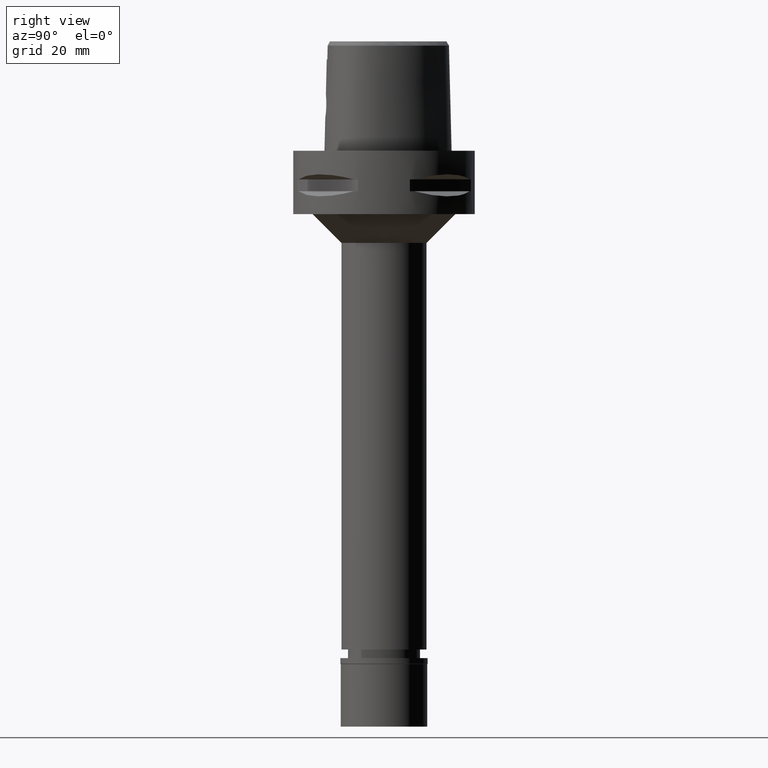
[diagram: clean part render]
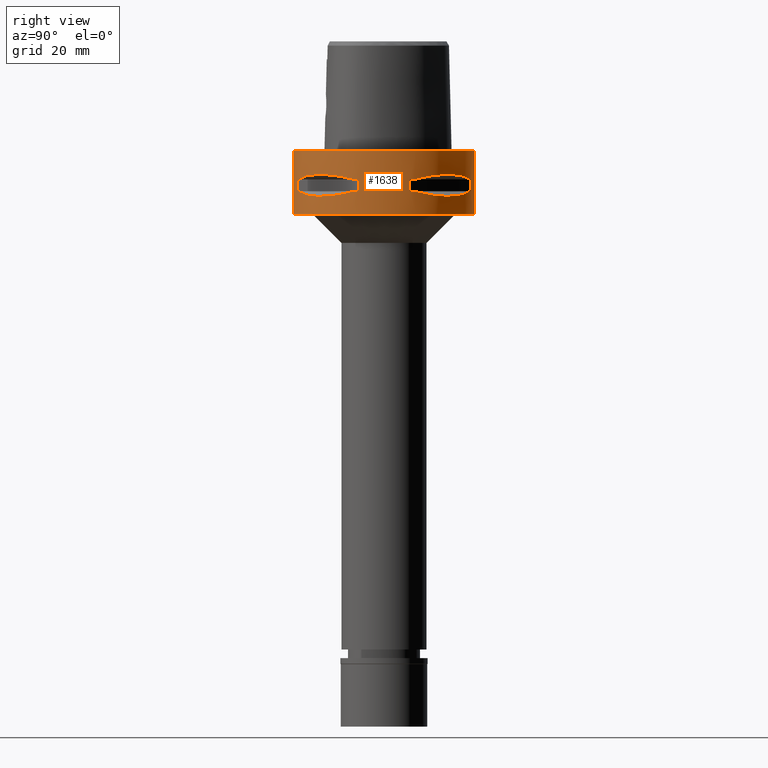
[diagram: same view with one face highlighted and labeled with its STEP entity id]
A machine part, right view. The second image highlights one B-rep face of the part: STEP entity #1638.
In plain terms, the highlighted cylindrical surface (partial cylindrical patch) has radius 31.5 mm, axis along (0, 0, -1).
Its self-contained STEP definition (entity closure, byte-faithful):
#9 = VERTEX_POINT ( 'NONE', #4226 ) ;
#26 = ORIENTED_EDGE ( 'NONE', *, *, #2072, .T. ) ;
#74 = CIRCLE ( 'NONE', #711, 31.50000000000000000 ) ;
#113 = LINE ( 'NONE', #529, #1449 ) ;
#123 = ORIENTED_EDGE ( 'NONE', *, *, #153, .T. ) ;
#128 = FACE_BOUND ( 'NONE', #1842, .T. ) ;
#144 = CARTESIAN_POINT ( 'NONE',  ( 17.05047092244466000, 26.48642424310579813, -15.42670883407955884 ) ) ;
#153 = EDGE_CURVE ( 'NONE', #1996, #880, #2479, .T. ) ;
#154 = EDGE_CURVE ( 'NONE', #861, #195, #810, .T. ) ;
#160 = CIRCLE ( 'NONE', #2931, 31.50000000000001776 ) ;
#169 = CARTESIAN_POINT ( 'NONE',  ( 28.62019653469295832, 13.25636937902403645, -14.74888225541133124 ) ) ;
#181 = ORIENTED_EDGE ( 'NONE', *, *, #3901, .T. ) ;
#186 = CARTESIAN_POINT ( 'NONE',  ( 10.44775724750000023, 29.71690375017999841, -9.950000000002001244 ) ) ;
#189 = CARTESIAN_POINT ( 'NONE',  ( 0.0000000000000000000, 1.340988245065999776E-14, -14.05000000000000071 ) ) ;
#195 = VERTEX_POINT ( 'NONE', #4689 ) ;
#204 = CARTESIAN_POINT ( 'NONE',  ( 26.54368690921830520, -16.96123479565102699, -15.41365572341627121 ) ) ;
#214 = CARTESIAN_POINT ( 'NONE',  ( 29.71690375017999841, 10.44775724750000023, -14.05000000000000071 ) ) ;
#225 = CARTESIAN_POINT ( 'NONE',  ( 24.23018836743425197, -20.18579225689640921, -15.78559396979826346 ) ) ;
#287 = ORIENTED_EDGE ( 'NONE', *, *, #4191, .F. ) ;
#305 = CARTESIAN_POINT ( 'NONE',  ( 25.43927894890251551, -18.59229662067769340, -15.62866126335070049 ) ) ;
#325 = CARTESIAN_POINT ( 'NONE',  ( 8.981198972019999616, 30.19251670572000279, -14.05000000000000071 ) ) ;
#361 = CARTESIAN_POINT ( 'NONE',  ( 0.0000000000000000000, 1.340988245065999776E-14, -9.950000000000001066 ) ) ;
#406 = CARTESIAN_POINT ( 'NONE',  ( 10.44775724750000023, 29.71690375017999841, -9.950000000002001244 ) ) ;
#410 = EDGE_CURVE ( 'NONE', #2872, #4004, #2043, .T. ) ;
#463 = DIRECTION ( 'NONE',  ( 0.0000000000000000000, 0.0000000000000000000, -1.000000000000000000 ) ) ;
#499 = AXIS2_PLACEMENT_3D ( 'NONE', #361, #3057, #3771 ) ;
#516 = DIRECTION ( 'NONE',  ( 0.0000000000000000000, 0.0000000000000000000, 1.000000000000000000 ) ) ;
#529 = CARTESIAN_POINT ( 'NONE',  ( 0.0000000000000000000, 31.50000000000000000, 0.0000000000000000000 ) ) ;
#588 = CARTESIAN_POINT ( 'NONE',  ( 26.64486562695979188, 16.80193241490626122, -15.38992683735969003 ) ) ;
#618 = CARTESIAN_POINT ( 'NONE',  ( 26.48642424310494903, -17.05047092244668505, -15.42670883408004023 ) ) ;
#632 = ORIENTED_EDGE ( 'NONE', *, *, #2772, .T. ) ;
#687 = VERTEX_POINT ( 'NONE', #3541 ) ;
#711 = AXIS2_PLACEMENT_3D ( 'NONE', #929, #3554, #3234 ) ;
#743 = CARTESIAN_POINT ( 'NONE',  ( 23.90617837153845571, -20.64154884321403571, -8.160613588491569814 ) ) ;
#747 = VERTEX_POINT ( 'NONE', #1293 ) ;
#810 = CIRCLE ( 'NONE', #499, 31.50000000000000711 ) ;
#850 = ORIENTED_EDGE ( 'NONE', *, *, #1821, .F. ) ;
#858 = CARTESIAN_POINT ( 'NONE',  ( 30.19251670572000279, -8.981198972016999349, -9.950000000000001066 ) ) ;
#859 = CARTESIAN_POINT ( 'NONE',  ( 0.0000000000000000000, 1.340988245065999776E-14, -9.950000000000001066 ) ) ;
#861 = VERTEX_POINT ( 'NONE', #186 ) ;
#880 = VERTEX_POINT ( 'NONE', #1819 ) ;
#886 = CARTESIAN_POINT ( 'NONE',  ( 21.46242677078534911, 23.08532645887771650, -15.83938991065519630 ) ) ;
#929 = CARTESIAN_POINT ( 'NONE',  ( 0.0000000000000000000, 1.340988245065999776E-14, -22.00000000000000000 ) ) ;
#948 = DIRECTION ( 'NONE',  ( 0.0000000000000000000, -1.000000000000000000, 0.0000000000000000000 ) ) ;
#988 = EDGE_CURVE ( 'NONE', #687, #9, #1186, .T. ) ;
#1001 = CARTESIAN_POINT ( 'NONE',  ( 27.86285265926396093, -14.89252659057812345, -15.10765629752127559 ) ) ;
#1028 = CARTESIAN_POINT ( 'NONE',  ( 10.44775724750000023, -29.71690375017999841, -14.05000000000000071 ) ) ;
#1036 = ORIENTED_EDGE ( 'NONE', *, *, #2799, .F. ) ;
#1068 = ORIENTED_EDGE ( 'NONE', *, *, #1967, .T. ) ;
#1093 = VERTEX_POINT ( 'NONE', #4224 ) ;
#1100 = LINE ( 'NONE', #2979, #1674 ) ;
#1116 = ORIENTED_EDGE ( 'NONE', *, *, #2220, .F. ) ;
#1120 = VERTEX_POINT ( 'NONE', #3437 ) ;
#1127 = VERTEX_POINT ( 'NONE', #2342 ) ;
#1128 = CIRCLE ( 'NONE', #3024, 31.50000000000001776 ) ;
#1129 = CIRCLE ( 'NONE', #4278, 31.50000000000000711 ) ;
#1132 = CARTESIAN_POINT ( 'NONE',  ( 30.19251670572000279, -8.981198972019999616, -14.05000000000000071 ) ) ;
#1137 = VERTEX_POINT ( 'NONE', #2723 ) ;
#1139 = CIRCLE ( 'NONE', #4451, 31.50000000000000711 ) ;
#1148 = ORIENTED_EDGE ( 'NONE', *, *, #988, .T. ) ;
#1149 = CARTESIAN_POINT ( 'NONE',  ( 12.70092055739809744, -28.92474506841551118, -9.353547358206165896 ) ) ;
#1186 = CIRCLE ( 'NONE', #3950, 31.50000000000000711 ) ;
#1195 = VECTOR ( 'NONE', #516, 1000.000000000000000 ) ;
#1200 = EDGE_CURVE ( 'NONE', #1093, #1137, #74, .T. ) ;
#1220 = CARTESIAN_POINT ( 'NONE',  ( 30.19251670572000279, 8.981198972019999616, -9.950000000000001066 ) ) ;
#1250 = DIRECTION ( 'NONE',  ( 0.0000000000000000000, 0.0000000000000000000, -1.000000000000000000 ) ) ;
#1275 = CARTESIAN_POINT ( 'NONE',  ( 0.0000000000000000000, 1.340988245065999776E-14, 9.500000000000000000 ) ) ;
#1286 = ORIENTED_EDGE ( 'NONE', *, *, #3436, .T. ) ;
#1293 = CARTESIAN_POINT ( 'NONE',  ( 29.71690375017999841, -10.44775724750000023, -14.05000000000000071 ) ) ;
#1312 = CARTESIAN_POINT ( 'NONE',  ( 17.14106442934976826, 26.42800887047588532, -15.43984550238772790 ) ) ;
#1331 = ORIENTED_EDGE ( 'NONE', *, *, #4649, .F. ) ;
#1356 = CARTESIAN_POINT ( 'NONE',  ( 26.58330558444617608, 16.89910283486720743, -15.40446471307533827 ) ) ;
#1363 = CARTESIAN_POINT ( 'NONE',  ( 29.71690375017999841, -10.44775724750000023, -9.950000000002001244 ) ) ;
#1367 = CARTESIAN_POINT ( 'NONE',  ( 23.08532645887072476, -21.46242677080184436, -15.83938991065908120 ) ) ;
#1394 = CARTESIAN_POINT ( 'NONE',  ( 29.71690375017999841, 10.44775724750000023, -9.950000000002001244 ) ) ;
#1442 = CARTESIAN_POINT ( 'NONE',  ( 29.71690375017999841, -10.44775724750000023, -9.950000000002001244 ) ) ;
#1447 = CARTESIAN_POINT ( 'NONE',  ( 28.91382665368659488, -12.73197616788688968, -14.65467361754156350 ) ) ;
#1449 = VECTOR ( 'NONE', #3160, 1000.000000000000000 ) ;
#1452 = CARTESIAN_POINT ( 'NONE',  ( 12.70097436174572358, 28.92472615208537334, -9.353533115232664841 ) ) ;
#1457 = DIRECTION ( 'NONE',  ( 0.3316748332540863653, -0.9433937698468619626, 0.0000000000000000000 ) ) ;
#1468 = CARTESIAN_POINT ( 'NONE',  ( 0.0000000000000000000, 31.50000000000000000, 0.0000000000000000000 ) ) ;
#1606 = CARTESIAN_POINT ( 'NONE',  ( 8.981198972016999349, 30.19251670572000279, -14.05000000000000071 ) ) ;
#1629 = EDGE_CURVE ( 'NONE', #2747, #3164, #3157, .T. ) ;
#1632 = FACE_BOUND ( 'NONE', #4850, .T. ) ;
#1638 = ADVANCED_FACE ( 'NONE', ( #4641, #128, #1632 ), #4695, .T. ) ;
#1645 = DIRECTION ( 'NONE',  ( 0.2851174276831918153, -0.9584925938322735872, 0.0000000000000000000 ) ) ;
#1674 = VECTOR ( 'NONE', #3715, 1000.000000000000000 ) ;
#1675 = CARTESIAN_POINT ( 'NONE',  ( 26.84474411199017752, 16.48208282228755550, -15.34094883778170093 ) ) ;
#1680 = B_SPLINE_CURVE_WITH_KNOTS ( 'NONE', 3,
 ( #1394, #1810, #4048, #3678, #4819, #2935, #3336, #4845, #1452, #406 ),
 .UNSPECIFIED., .F., .F.,
 ( 4, 2, 2, 2, 4 ),
 ( 0.0000000000000000000, 0.2500000000000000000, 0.5000000000000000000, 0.7500000000000000000, 1.000000000000000000 ),
 .UNSPECIFIED. ) ;
#1698 = CARTESIAN_POINT ( 'NONE',  ( 27.64634172018763536, 15.11986997308868830, -15.11207862403486146 ) ) ;
#1729 = CARTESIAN_POINT ( 'NONE',  ( 26.29071741523342709, -17.35163608580722894, -15.46976201925860828 ) ) ;
#1736 = VECTOR ( 'NONE', #3528, 1000.000000000000000 ) ;
#1750 = ORIENTED_EDGE ( 'NONE', *, *, #1629, .F. ) ;
#1806 = CARTESIAN_POINT ( 'NONE',  ( 26.01217882833934780, -17.76952662673609851, -15.52665221626610403 ) ) ;
#1810 = CARTESIAN_POINT ( 'NONE',  ( 28.92474506841557513, 12.70092055739797487, -9.353547358206164120 ) ) ;
#1819 = CARTESIAN_POINT ( 'NONE',  ( 0.0000000000000000000, -31.50000000000000000, 0.0000000000000000000 ) ) ;
#1821 = EDGE_CURVE ( 'NONE', #687, #747, #3414, .T. ) ;
#1842 = EDGE_LOOP ( 'NONE', ( #632, #1750, #1892, #850, #1148, #287, #1946, #3416 ) ) ;
#1877 = CARTESIAN_POINT ( 'NONE',  ( 0.0000000000000000000, -31.50000000000000000, 0.0000000000000000000 ) ) ;
#1883 = LINE ( 'NONE', #2712, #2787 ) ;
#1892 = ORIENTED_EDGE ( 'NONE', *, *, #4197, .T. ) ;
#1946 = ORIENTED_EDGE ( 'NONE', *, *, #4735, .T. ) ;
#1967 = EDGE_CURVE ( 'NONE', #880, #1093, #2234, .T. ) ;
#1996 = VERTEX_POINT ( 'NONE', #1468 ) ;
#2043 = B_SPLINE_CURVE_WITH_KNOTS ( 'NONE', 3,
 ( #4089, #1149, #4140, #3692, #4536, #743, #4834, #4181, #4161, #1442 ),
 .UNSPECIFIED., .F., .F.,
 ( 4, 2, 2, 2, 4 ),
 ( 0.0000000000000000000, 0.2500000000000000555, 0.5000000000000001110, 0.7500000000000002220, 1.000000000000000000 ),
 .UNSPECIFIED. ) ;
#2072 = EDGE_CURVE ( 'NONE', #4572, #1120, #160, .T. ) ;
#2099 = CARTESIAN_POINT ( 'NONE',  ( 26.60451452154948981, 16.86571563436761068, -15.39949295786298400 ) ) ;
#2107 = CARTESIAN_POINT ( 'NONE',  ( 11.58970337496372238, -29.31542262583958802, -14.35229357167590614 ) ) ;
#2108 = EDGE_LOOP ( 'NONE', ( #123, #1068, #4297, #3168 ) ) ;
#2183 = CARTESIAN_POINT ( 'NONE',  ( 16.03138450079904231, -27.11872488588858587, -15.26880420108306247 ) ) ;
#2192 = VERTEX_POINT ( 'NONE', #2826 ) ;
#2220 = EDGE_CURVE ( 'NONE', #4382, #195, #2407, .T. ) ;
#2222 = AXIS2_PLACEMENT_3D ( 'NONE', #3905, #2450, #1645 ) ;
#2234 = LINE ( 'NONE', #1877, #4427 ) ;
#2279 = CARTESIAN_POINT ( 'NONE',  ( 0.0000000000000000000, 1.340988245065999776E-14, 0.0000000000000000000 ) ) ;
#2335 = DIRECTION ( 'NONE',  ( 0.0000000000000000000, 0.0000000000000000000, 1.000000000000000000 ) ) ;
#2342 = CARTESIAN_POINT ( 'NONE',  ( 8.981198972019999616, -30.19251670572000279, -9.950000000000001066 ) ) ;
#2377 = CARTESIAN_POINT ( 'NONE',  ( 16.96123479565062198, 26.54368690921844731, -15.41365572341616819 ) ) ;
#2407 = LINE ( 'NONE', #1606, #1195 ) ;
#2450 = DIRECTION ( 'NONE',  ( 0.0000000000000000000, 0.0000000000000000000, 1.000000000000000000 ) ) ;
#2471 = CIRCLE ( 'NONE', #2553, 31.50000000000001776 ) ;
#2477 = CARTESIAN_POINT ( 'NONE',  ( 20.18579225686753986, 24.23018836744649462, -15.78559396979147422 ) ) ;
#2479 = CIRCLE ( 'NONE', #4539, 31.50000000000000000 ) ;
#2487 = CARTESIAN_POINT ( 'NONE',  ( 16.86571563436929466, -26.60451452154890717, -15.39949295786343164 ) ) ;
#2509 = CARTESIAN_POINT ( 'NONE',  ( 29.71690375017999841, -10.44775724750000023, -14.05000000000000071 ) ) ;
#2534 = CARTESIAN_POINT ( 'NONE',  ( 13.25636937907128399, -28.62019653467633518, -14.74888225542383857 ) ) ;
#2553 = AXIS2_PLACEMENT_3D ( 'NONE', #189, #463, #3971 ) ;
#2589 = CARTESIAN_POINT ( 'NONE',  ( 0.0000000000000000000, 1.340988245065999776E-14, -14.05000000000000071 ) ) ;
#2604 = CARTESIAN_POINT ( 'NONE',  ( 0.0000000000000000000, 1.340988245065999776E-14, -14.05000000000000071 ) ) ;
#2612 = DIRECTION ( 'NONE',  ( 0.9433937698468619626, 0.3316748332540863653, 0.0000000000000000000 ) ) ;
#2624 = VERTEX_POINT ( 'NONE', #2670 ) ;
#2667 = CARTESIAN_POINT ( 'NONE',  ( 0.0000000000000000000, 1.340988245065999776E-14, -9.950000000000001066 ) ) ;
#2670 = CARTESIAN_POINT ( 'NONE',  ( 10.44775724750000023, 29.71690375017999841, -14.05000000000000071 ) ) ;
#2676 = ORIENTED_EDGE ( 'NONE', *, *, #154, .T. ) ;
#2712 = CARTESIAN_POINT ( 'NONE',  ( 30.19251670572000279, 8.981198972016999349, -9.950000000000001066 ) ) ;
#2718 = CIRCLE ( 'NONE', #2222, 31.50000000000001776 ) ;
#2723 = CARTESIAN_POINT ( 'NONE',  ( 0.0000000000000000000, 31.50000000000000000, -22.00000000000000000 ) ) ;
#2747 = VERTEX_POINT ( 'NONE', #1132 ) ;
#2772 = EDGE_CURVE ( 'NONE', #4004, #3164, #1129, .T. ) ;
#2775 = CARTESIAN_POINT ( 'NONE',  ( 18.59229662065603605, 25.43927894891167796, -15.62866126334560413 ) ) ;
#2787 = VECTOR ( 'NONE', #3843, 1000.000000000000000 ) ;
#2799 = EDGE_CURVE ( 'NONE', #4572, #4152, #1883, .T. ) ;
#2826 = CARTESIAN_POINT ( 'NONE',  ( 29.71690375017999841, 10.44775724750000023, -14.05000000000000071 ) ) ;
#2844 = CARTESIAN_POINT ( 'NONE',  ( 27.11872488589586183, 16.03138450077837618, -15.26880420107759129 ) ) ;
#2872 = VERTEX_POINT ( 'NONE', #3107 ) ;
#2883 = CARTESIAN_POINT ( 'NONE',  ( 15.11986997312413017, -27.64634172017517599, -15.11207862404423352 ) ) ;
#2931 = AXIS2_PLACEMENT_3D ( 'NONE', #859, #3173, #4305 ) ;
#2935 = CARTESIAN_POINT ( 'NONE',  ( 20.64154884321405348, 23.90617837153846281, -8.160613588491569814 ) ) ;
#2979 = CARTESIAN_POINT ( 'NONE',  ( 8.981198972016999349, -30.19251670572000279, -9.950000000000001066 ) ) ;
#3024 = AXIS2_PLACEMENT_3D ( 'NONE', #2604, #4407, #3359 ) ;
#3034 = DIRECTION ( 'NONE',  ( 0.0000000000000000000, 0.0000000000000000000, -1.000000000000000000 ) ) ;
#3057 = DIRECTION ( 'NONE',  ( 0.0000000000000000000, 0.0000000000000000000, 1.000000000000000000 ) ) ;
#3081 = DIRECTION ( 'NONE',  ( 0.9433937698468619626, -0.3316748332540863653, 0.0000000000000000000 ) ) ;
#3107 = CARTESIAN_POINT ( 'NONE',  ( 10.44775724750000023, -29.71690375017999841, -9.950000000002001244 ) ) ;
#3147 = CARTESIAN_POINT ( 'NONE',  ( 12.73197616791283870, 28.91382665367748928, -14.65467361754843800 ) ) ;
#3157 = LINE ( 'NONE', #4664, #1736 ) ;
#3160 = DIRECTION ( 'NONE',  ( 0.0000000000000000000, 0.0000000000000000000, -1.000000000000000000 ) ) ;
#3164 = VERTEX_POINT ( 'NONE', #858 ) ;
#3168 = ORIENTED_EDGE ( 'NONE', *, *, #3941, .F. ) ;
#3170 = CARTESIAN_POINT ( 'NONE',  ( 25.32725744468093509, 18.86897208074246635, -15.69588095934180316 ) ) ;
#3173 = DIRECTION ( 'NONE',  ( 0.0000000000000000000, 0.0000000000000000000, 1.000000000000000000 ) ) ;
#3199 = CARTESIAN_POINT ( 'NONE',  ( 26.70521063584740062, 16.70616724745824655, -15.37546661817944127 ) ) ;
#3225 = CARTESIAN_POINT ( 'NONE',  ( 30.19251670572000279, 8.981198972016999349, -14.05000000000000071 ) ) ;
#3234 = DIRECTION ( 'NONE',  ( 0.0000000000000000000, -1.000000000000000000, 0.0000000000000000000 ) ) ;
#3239 = CARTESIAN_POINT ( 'NONE',  ( 29.31542262584909153, 11.58970337493671998, -14.35229357166876873 ) ) ;
#3331 = CARTESIAN_POINT ( 'NONE',  ( 16.80193241490956879, -26.64486562695862659, -15.38992683736056932 ) ) ;
#3336 = CARTESIAN_POINT ( 'NONE',  ( 18.81462633020659680, 25.37272068407227721, -8.309724968634812470 ) ) ;
#3359 = DIRECTION ( 'NONE',  ( 0.9584925938322735872, -0.2851174276831918153, 0.0000000000000000000 ) ) ;
#3364 = DIRECTION ( 'NONE',  ( 0.0000000000000000000, 1.000000000000000000, 0.0000000000000000000 ) ) ;
#3414 = B_SPLINE_CURVE_WITH_KNOTS ( 'NONE', 3,
 ( #1028, #2107, #2534, #2883, #2183, #4838, #3696, #3331, #2487, #4815, #3991, #4464, #1367, #225, #305, #1806, #1729, #4385, #618, #3599, #204, #1001, #1447, #2509 ),
 .UNSPECIFIED., .F., .F.,
 ( 4, 1, 1, 1, 1, 1, 2, 2, 2, 1, 1, 1, 1, 1, 2, 2, 4 ),
 ( 0.0000000000000000000, 0.1250000000000019429, 0.1875000000000029143, 0.2187500000000035250, 0.2343750000000039135, 0.2421875000000040801, 0.2460937500000041356, 0.2500000000000041633, 0.4999999999999987788, 0.6249999999999961142, 0.6874999999999948930, 0.7187499999999945599, 0.7343749999999943379, 0.7421874999999941158, 0.7460937499999938938, 0.7499999999999937828, 1.000000000000000000 ),
 .UNSPECIFIED. ) ;
#3416 = ORIENTED_EDGE ( 'NONE', *, *, #410, .T. ) ;
#3436 = EDGE_CURVE ( 'NONE', #4382, #2624, #2471, .T. ) ;
#3437 = CARTESIAN_POINT ( 'NONE',  ( 29.71690375017999841, 10.44775724750000023, -9.950000000002001244 ) ) ;
#3528 = DIRECTION ( 'NONE',  ( 0.0000000000000000000, 0.0000000000000000000, 1.000000000000000000 ) ) ;
#3541 = CARTESIAN_POINT ( 'NONE',  ( 10.44775724750000023, -29.71690375017999841, -14.05000000000000071 ) ) ;
#3554 = DIRECTION ( 'NONE',  ( 0.0000000000000000000, 0.0000000000000000000, 1.000000000000000000 ) ) ;
#3599 = CARTESIAN_POINT ( 'NONE',  ( 26.52527364208691196, -16.98999780422374428, -15.41788098766643778 ) ) ;
#3678 = CARTESIAN_POINT ( 'NONE',  ( 25.37277178159834179, 18.81455742174604140, -8.309746333095063164 ) ) ;
#3683 = EDGE_CURVE ( 'NONE', #2192, #4152, #1139, .T. ) ;
#3692 = CARTESIAN_POINT ( 'NONE',  ( 18.81455742174600942, -25.37277178159833824, -8.309746333095063164 ) ) ;
#3696 = CARTESIAN_POINT ( 'NONE',  ( 16.70616724746396642, -26.70521063584539334, -15.37546661818095473 ) ) ;
#3715 = DIRECTION ( 'NONE',  ( 0.0000000000000000000, 0.0000000000000000000, -1.000000000000000000 ) ) ;
#3721 = AXIS2_PLACEMENT_3D ( 'NONE', #1275, #1250, #948 ) ;
#3771 = DIRECTION ( 'NONE',  ( 0.3316748332540863653, 0.9433937698468619626, 0.0000000000000000000 ) ) ;
#3843 = DIRECTION ( 'NONE',  ( 0.0000000000000000000, 0.0000000000000000000, -1.000000000000000000 ) ) ;
#3901 = EDGE_CURVE ( 'NONE', #1120, #861, #1680, .T. ) ;
#3905 = CARTESIAN_POINT ( 'NONE',  ( 0.0000000000000000000, 1.340988245065999776E-14, -9.950000000000001066 ) ) ;
#3927 = CARTESIAN_POINT ( 'NONE',  ( 10.44775724750000023, 29.71690375017999841, -14.05000000000000071 ) ) ;
#3941 = EDGE_CURVE ( 'NONE', #1996, #1137, #113, .T. ) ;
#3950 = AXIS2_PLACEMENT_3D ( 'NONE', #4853, #4476, #1457 ) ;
#3971 = DIRECTION ( 'NONE',  ( 0.2851174276831918153, 0.9584925938322735872, 0.0000000000000000000 ) ) ;
#3983 = CARTESIAN_POINT ( 'NONE',  ( 14.89252659060408668, 27.86285265925483046, -15.10765629752815009 ) ) ;
#3991 = CARTESIAN_POINT ( 'NONE',  ( 18.86897208073048660, -25.32725744467385454, -15.69588095933403160 ) ) ;
#4004 = VERTEX_POINT ( 'NONE', #1363 ) ;
#4048 = CARTESIAN_POINT ( 'NONE',  ( 27.88214534463900307, 14.84422749211552883, -8.906206096465613342 ) ) ;
#4089 = CARTESIAN_POINT ( 'NONE',  ( 10.44775724750000023, -29.71690375017999841, -9.950000000002001244 ) ) ;
#4097 = DIRECTION ( 'NONE',  ( 0.0000000000000000000, 0.0000000000000000000, -1.000000000000000000 ) ) ;
#4140 = CARTESIAN_POINT ( 'NONE',  ( 14.84422749211558390, -27.88214534463893557, -8.906206096465609789 ) ) ;
#4152 = VERTEX_POINT ( 'NONE', #3225 ) ;
#4161 = CARTESIAN_POINT ( 'NONE',  ( 28.92472615208540887, -12.70097436174559391, -9.353533115232663064 ) ) ;
#4181 = CARTESIAN_POINT ( 'NONE',  ( 27.88210502990664352, -14.84430321566176403, -8.906184732005364424 ) ) ;
#4191 = EDGE_CURVE ( 'NONE', #1127, #9, #1100, .T. ) ;
#4197 = EDGE_CURVE ( 'NONE', #2747, #747, #1128, .T. ) ;
#4224 = CARTESIAN_POINT ( 'NONE',  ( 0.0000000000000000000, -31.50000000000000000, -22.00000000000000000 ) ) ;
#4226 = CARTESIAN_POINT ( 'NONE',  ( 8.981198972016999349, -30.19251670572000279, -14.05000000000000071 ) ) ;
#4270 = ORIENTED_EDGE ( 'NONE', *, *, #3683, .T. ) ;
#4275 = CARTESIAN_POINT ( 'NONE',  ( 17.35163608580045391, 26.29071741523629768, -15.46976201925701133 ) ) ;
#4278 = AXIS2_PLACEMENT_3D ( 'NONE', #2667, #2335, #3081 ) ;
#4297 = ORIENTED_EDGE ( 'NONE', *, *, #1200, .T. ) ;
#4305 = DIRECTION ( 'NONE',  ( 0.9584925938322735872, 0.2851174276831918153, 0.0000000000000000000 ) ) ;
#4347 = CARTESIAN_POINT ( 'NONE',  ( 23.89673728055542767, 20.65093790437063248, -15.83935804902473343 ) ) ;
#4382 = VERTEX_POINT ( 'NONE', #325 ) ;
#4385 = CARTESIAN_POINT ( 'NONE',  ( 26.42800887047440028, -17.14106442935327124, -15.43984550238855391 ) ) ;
#4407 = DIRECTION ( 'NONE',  ( 0.0000000000000000000, 0.0000000000000000000, -1.000000000000000000 ) ) ;
#4427 = VECTOR ( 'NONE', #3034, 1000.000000000000000 ) ;
#4451 = AXIS2_PLACEMENT_3D ( 'NONE', #2589, #4097, #2612 ) ;
#4464 = CARTESIAN_POINT ( 'NONE',  ( 20.65093790438460530, -23.89673728052242296, -15.83935804901696542 ) ) ;
#4476 = DIRECTION ( 'NONE',  ( 0.0000000000000000000, 0.0000000000000000000, -1.000000000000000000 ) ) ;
#4536 = CARTESIAN_POINT ( 'NONE',  ( 20.64154884321397176, -23.90617837153849479, -8.160627831289133383 ) ) ;
#4539 = AXIS2_PLACEMENT_3D ( 'NONE', #2279, #4541, #3364 ) ;
#4541 = DIRECTION ( 'NONE',  ( 0.0000000000000000000, 0.0000000000000000000, -1.000000000000000000 ) ) ;
#4572 = VERTEX_POINT ( 'NONE', #1220 ) ;
#4641 = FACE_OUTER_BOUND ( 'NONE', #2108, .T. ) ;
#4649 = EDGE_CURVE ( 'NONE', #2192, #2624, #4688, .T. ) ;
#4664 = CARTESIAN_POINT ( 'NONE',  ( 30.19251670572000279, -8.981198972016999349, -14.05000000000000071 ) ) ;
#4688 = B_SPLINE_CURVE_WITH_KNOTS ( 'NONE', 3,
 ( #214, #3239, #169, #1698, #2844, #1675, #3199, #588, #2099, #1356, #3170, #4347, #886, #2477, #2775, #4726, #4275, #1312, #144, #4750, #2377, #3983, #3147, #3927 ),
 .UNSPECIFIED., .F., .F.,
 ( 4, 1, 1, 1, 1, 1, 2, 2, 2, 1, 1, 1, 1, 1, 2, 2, 4 ),
 ( 0.0000000000000000000, 0.1250000000000036360, 0.1875000000000056344, 0.2187500000000066336, 0.2343750000000070222, 0.2421875000000072164, 0.2460937500000072997, 0.2500000000000073830, 0.5000000000000048850, 0.6250000000000037748, 0.6875000000000031086, 0.7187500000000027756, 0.7343750000000025535, 0.7421875000000023315, 0.7460937500000024425, 0.7500000000000025535, 1.000000000000000000 ),
 .UNSPECIFIED. ) ;
#4689 = CARTESIAN_POINT ( 'NONE',  ( 8.981198972016999349, 30.19251670572000279, -9.950000000000001066 ) ) ;
#4695 = CYLINDRICAL_SURFACE ( 'NONE', #3721, 31.50000000000000000 ) ;
#4726 = CARTESIAN_POINT ( 'NONE',  ( 17.76952662672345795, 26.01217882834468398, -15.52665221626313041 ) ) ;
#4735 = EDGE_CURVE ( 'NONE', #1127, #2872, #2718, .T. ) ;
#4750 = CARTESIAN_POINT ( 'NONE',  ( 16.98999780422272465, 26.52527364208734895, -15.41788098766619974 ) ) ;
#4815 = CARTESIAN_POINT ( 'NONE',  ( 16.89910283486738862, -26.58330558444628977, -15.40446471307545906 ) ) ;
#4819 = CARTESIAN_POINT ( 'NONE',  ( 23.90617837153837755, 20.64154884321413164, -8.160627831289135159 ) ) ;
#4834 = CARTESIAN_POINT ( 'NONE',  ( 25.37272068407230918, -18.81462633020653286, -8.309724968634814246 ) ) ;
#4838 = CARTESIAN_POINT ( 'NONE',  ( 16.48208282229863286, -26.84474411198628374, -15.34094883778463903 ) ) ;
#4845 = CARTESIAN_POINT ( 'NONE',  ( 14.84430321566187239, 27.88210502990660444, -8.906184732005364424 ) ) ;
#4850 = EDGE_LOOP ( 'NONE', ( #2676, #1116, #1286, #1331, #4270, #1036, #26, #181 ) ) ;
#4853 = CARTESIAN_POINT ( 'NONE',  ( 0.0000000000000000000, 1.340988245065999776E-14, -14.05000000000000071 ) ) ;